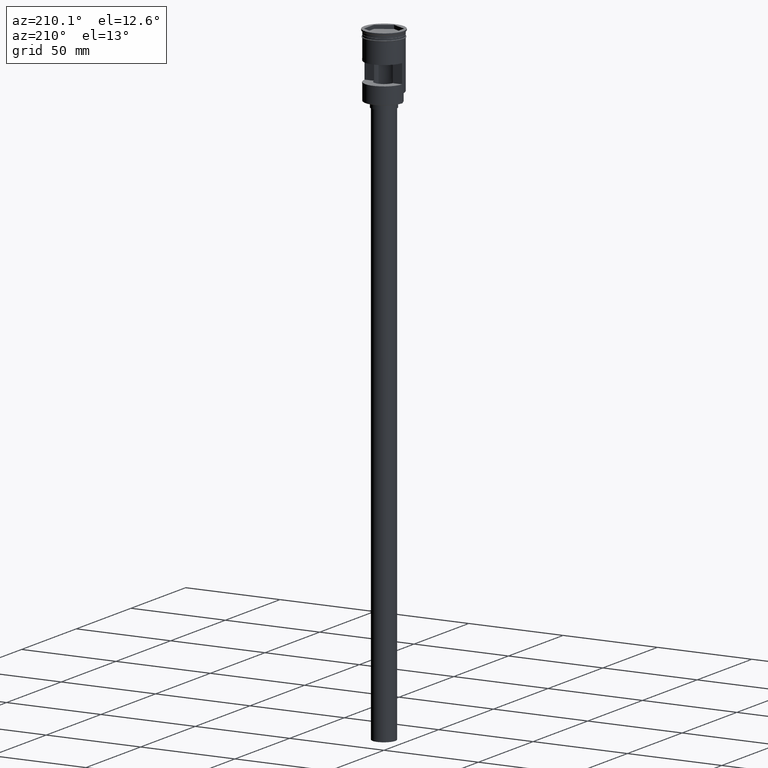
[diagram: clean part render]
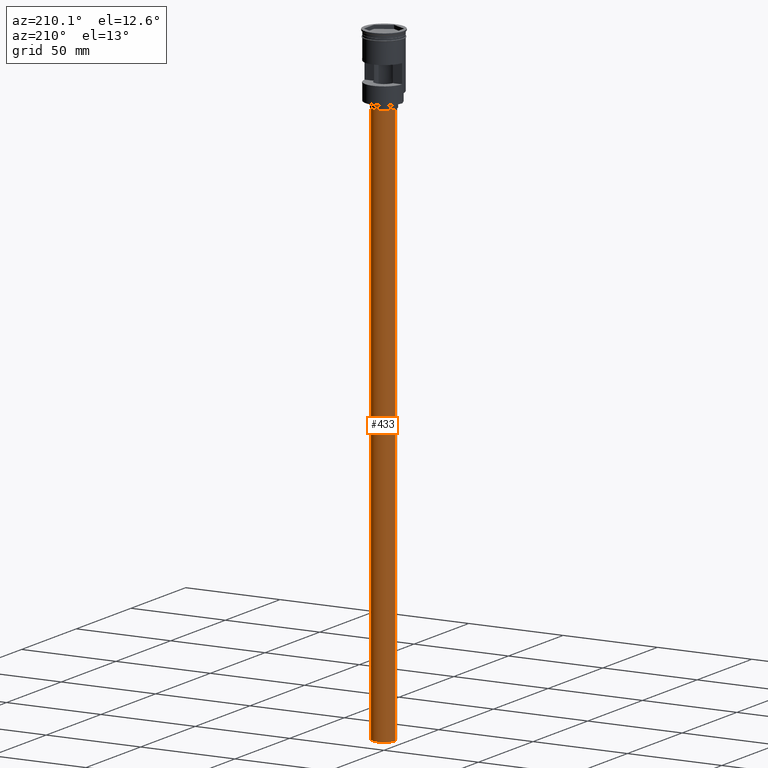
[diagram: same view with one face highlighted and labeled with its STEP entity id]
A machine part, auxiliary view. The second image highlights one B-rep face of the part: STEP entity #433.
In plain terms, the highlighted cylindrical surface (edge-blend (fillet) strip) has radius 6 mm, axis along (-0, -0, 1).
Its self-contained STEP definition (entity closure, byte-faithful):
#51 = AXIS2_PLACEMENT_3D ( 'NONE', #1350, #507, #248 ) ;
#189 = ORIENTED_EDGE ( 'NONE', *, *, #642, .T. ) ;
#248 = DIRECTION ( 'NONE',  ( 1.000000000000000000, 0.000000000000000000, 0.000000000000000000 ) ) ;
#249 = CARTESIAN_POINT ( 'NONE',  ( 6.000000000000000888, 0.000000000000000000, -333.9999999999999432 ) ) ;
#259 = AXIS2_PLACEMENT_3D ( 'NONE', #523, #901, #293 ) ;
#293 = DIRECTION ( 'NONE',  ( -1.000000000000000000, 0.000000000000000000, 0.000000000000000000 ) ) ;
#346 = EDGE_CURVE ( 'NONE', #1433, #423, #964, .T. ) ;
#347 = CARTESIAN_POINT ( 'NONE',  ( 6.000000000000000888, 0.000000000000000000, -333.9999999999999432 ) ) ;
#357 = DIRECTION ( 'NONE',  ( -1.000000000000000000, 0.000000000000000000, 0.000000000000000000 ) ) ;
#371 = DIRECTION ( 'NONE',  ( -0.000000000000000000, -0.000000000000000000, 1.000000000000000000 ) ) ;
#389 = VECTOR ( 'NONE', #844, 1000.000000000000000 ) ;
#423 = VERTEX_POINT ( 'NONE', #498 ) ;
#433 = ADVANCED_FACE ( 'NONE', ( #1256 ), #976, .T. ) ;
#446 = CARTESIAN_POINT ( 'NONE',  ( -6.000000000000000888, 7.347880794884120722E-16, -333.9999999999999432 ) ) ;
#498 = CARTESIAN_POINT ( 'NONE',  ( -6.000000000000000888, 7.347880794884120722E-16, -37.00000000000000000 ) ) ;
#505 = ORIENTED_EDGE ( 'NONE', *, *, #806, .F. ) ;
#507 = DIRECTION ( 'NONE',  ( -0.000000000000000000, -0.000000000000000000, 1.000000000000000000 ) ) ;
#523 = CARTESIAN_POINT ( 'NONE',  ( 0.000000000000000000, 0.000000000000000000, -37.00000000000000000 ) ) ;
#642 = EDGE_CURVE ( 'NONE', #423, #1336, #958, .T. ) ;
#696 = AXIS2_PLACEMENT_3D ( 'NONE', #950, #1446, #357 ) ;
#700 = LINE ( 'NONE', #347, #1085 ) ;
#749 = CARTESIAN_POINT ( 'NONE',  ( 6.000000000000000888, 0.000000000000000000, -37.00000000000000000 ) ) ;
#806 = EDGE_CURVE ( 'NONE', #1433, #1171, #1396, .T. ) ;
#844 = DIRECTION ( 'NONE',  ( -0.000000000000000000, -0.000000000000000000, 1.000000000000000000 ) ) ;
#901 = DIRECTION ( 'NONE',  ( 0.000000000000000000, 0.000000000000000000, -1.000000000000000000 ) ) ;
#950 = CARTESIAN_POINT ( 'NONE',  ( 0.000000000000000000, 0.000000000000000000, -333.9999999999999432 ) ) ;
#958 = CIRCLE ( 'NONE', #259, 6.000000000000000888 ) ;
#964 = LINE ( 'NONE', #1456, #389 ) ;
#976 = CYLINDRICAL_SURFACE ( 'NONE', #51, 6.000000000000000888 ) ;
#1081 = EDGE_CURVE ( 'NONE', #1171, #1336, #700, .T. ) ;
#1085 = VECTOR ( 'NONE', #371, 1000.000000000000000 ) ;
#1154 = ORIENTED_EDGE ( 'NONE', *, *, #346, .T. ) ;
#1171 = VERTEX_POINT ( 'NONE', #249 ) ;
#1185 = EDGE_LOOP ( 'NONE', ( #505, #1154, #189, #1271 ) ) ;
#1256 = FACE_OUTER_BOUND ( 'NONE', #1185, .T. ) ;
#1271 = ORIENTED_EDGE ( 'NONE', *, *, #1081, .F. ) ;
#1336 = VERTEX_POINT ( 'NONE', #749 ) ;
#1350 = CARTESIAN_POINT ( 'NONE',  ( 0.000000000000000000, 0.000000000000000000, -333.9999999999999432 ) ) ;
#1396 = CIRCLE ( 'NONE', #696, 6.000000000000000888 ) ;
#1433 = VERTEX_POINT ( 'NONE', #446 ) ;
#1446 = DIRECTION ( 'NONE',  ( 0.000000000000000000, 0.000000000000000000, -1.000000000000000000 ) ) ;
#1456 = CARTESIAN_POINT ( 'NONE',  ( -6.000000000000000888, 7.347880794884120722E-16, -333.9999999999999432 ) ) ;